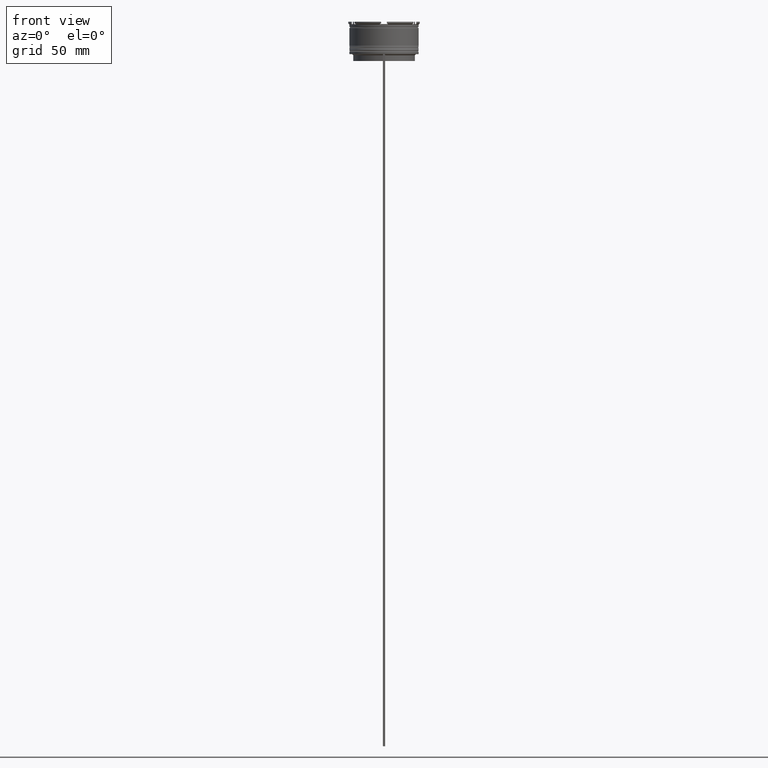
[diagram: clean part render]
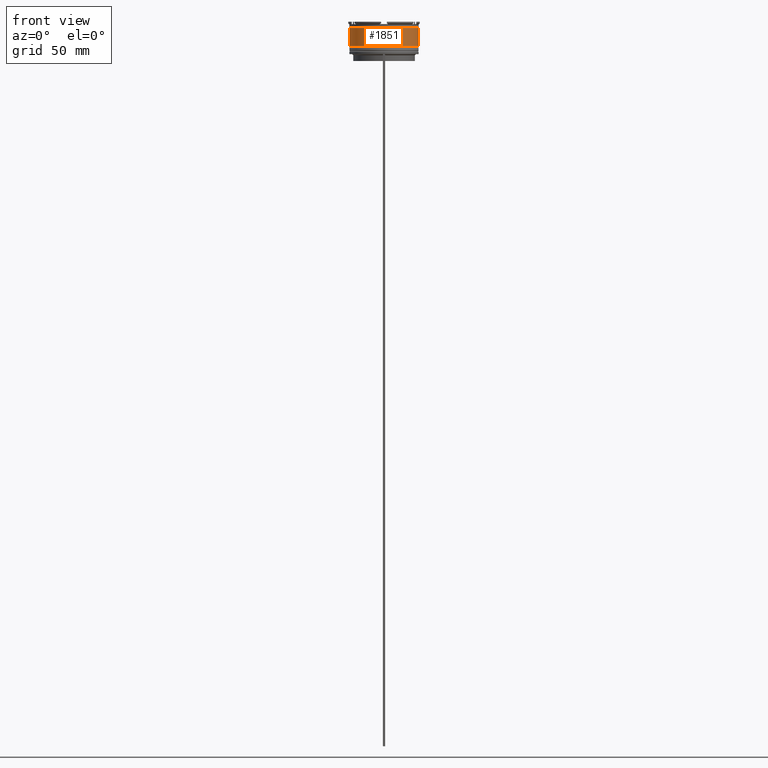
[diagram: same view with one face highlighted and labeled with its STEP entity id]
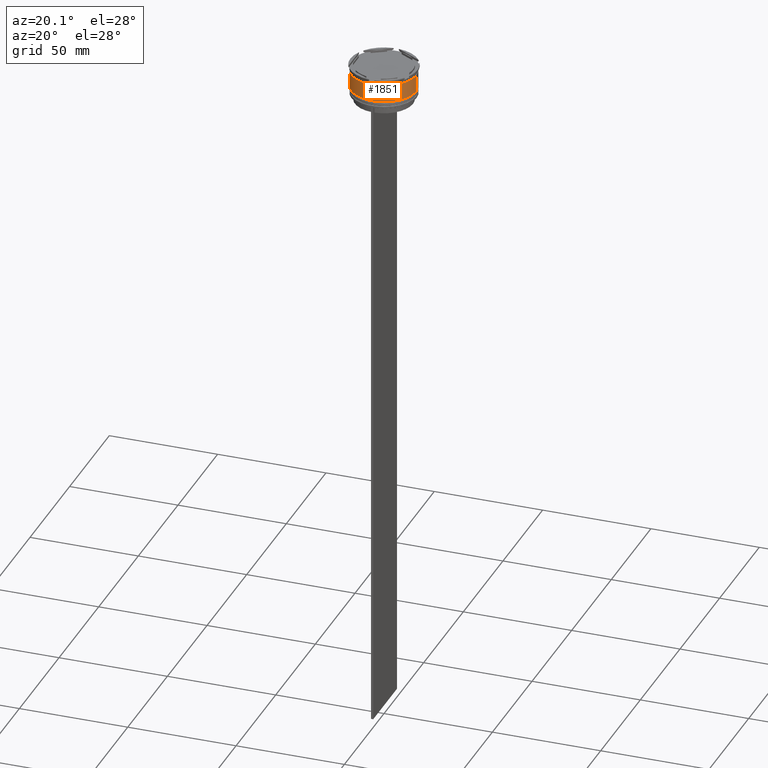
[diagram: same view with one face highlighted and labeled with its STEP entity id]
A machine part, front view. The second image highlights one B-rep face of the part: STEP entity #1851.
A second angle (auxiliary view) of the same face is appended — the face is thin or edge-on in the first view.
In plain terms, the highlighted cylindrical surface (edge-blend (fillet) strip) has radius 15 mm, axis along (-0, -0, 1).
Its self-contained STEP definition (entity closure, byte-faithful):
#45 = DIRECTION ( 'NONE',  ( -0.000000000000000000, -0.000000000000000000, 1.000000000000000000 ) ) ;
#117 = ORIENTED_EDGE ( 'NONE', *, *, #783, .F. ) ;
#287 = LINE ( 'NONE', #1179, #456 ) ;
#299 = CARTESIAN_POINT ( 'NONE',  ( -14.99999999999999822, 1.836970198721029194E-15, -2.699999999999999734 ) ) ;
#439 = EDGE_CURVE ( 'NONE', #921, #2429, #784, .T. ) ;
#456 = VECTOR ( 'NONE', #45, 1000.000000000000000 ) ;
#585 = FACE_OUTER_BOUND ( 'NONE', #1204, .T. ) ;
#624 = CARTESIAN_POINT ( 'NONE',  ( 0.000000000000000000, 0.000000000000000000, 0.000000000000000000 ) ) ;
#684 = CARTESIAN_POINT ( 'NONE',  ( 15.00000000000000000, 0.000000000000000000, 0.000000000000000000 ) ) ;
#783 = EDGE_CURVE ( 'NONE', #1962, #921, #287, .T. ) ;
#784 = CIRCLE ( 'NONE', #1906, 14.99999999999999822 ) ;
#921 = VERTEX_POINT ( 'NONE', #299 ) ;
#1138 = ORIENTED_EDGE ( 'NONE', *, *, #2604, .T. ) ;
#1179 = CARTESIAN_POINT ( 'NONE',  ( -15.00000000000000000, 1.836970198721029589E-15, 0.000000000000000000 ) ) ;
#1204 = EDGE_LOOP ( 'NONE', ( #117, #1138, #1981, #2034 ) ) ;
#1347 = VERTEX_POINT ( 'NONE', #2427 ) ;
#1458 = CYLINDRICAL_SURFACE ( 'NONE', #1782, 15.00000000000000000 ) ;
#1531 = CARTESIAN_POINT ( 'NONE',  ( -15.00000000000000355, 1.836970198721029983E-15, -10.50000000000000178 ) ) ;
#1639 = AXIS2_PLACEMENT_3D ( 'NONE', #2146, #1951, #1738 ) ;
#1738 = DIRECTION ( 'NONE',  ( 1.000000000000000000, 0.000000000000000000, 0.000000000000000000 ) ) ;
#1764 = CARTESIAN_POINT ( 'NONE',  ( 14.99999999999999822, 0.000000000000000000, -2.699999999999999734 ) ) ;
#1782 = AXIS2_PLACEMENT_3D ( 'NONE', #624, #2395, #2122 ) ;
#1851 = ADVANCED_FACE ( 'NONE', ( #585 ), #1458, .T. ) ;
#1906 = AXIS2_PLACEMENT_3D ( 'NONE', #2676, #2704, #2491 ) ;
#1951 = DIRECTION ( 'NONE',  ( -0.000000000000000000, -0.000000000000000000, 1.000000000000000000 ) ) ;
#1962 = VERTEX_POINT ( 'NONE', #1531 ) ;
#1981 = ORIENTED_EDGE ( 'NONE', *, *, #1983, .T. ) ;
#1983 = EDGE_CURVE ( 'NONE', #1347, #2429, #2673, .T. ) ;
#2034 = ORIENTED_EDGE ( 'NONE', *, *, #439, .F. ) ;
#2078 = CIRCLE ( 'NONE', #1639, 15.00000000000000178 ) ;
#2122 = DIRECTION ( 'NONE',  ( 1.000000000000000000, 0.000000000000000000, 0.000000000000000000 ) ) ;
#2146 = CARTESIAN_POINT ( 'NONE',  ( 0.000000000000000000, 0.000000000000000000, -10.50000000000000178 ) ) ;
#2219 = DIRECTION ( 'NONE',  ( -0.000000000000000000, -0.000000000000000000, 1.000000000000000000 ) ) ;
#2220 = VECTOR ( 'NONE', #2219, 1000.000000000000000 ) ;
#2395 = DIRECTION ( 'NONE',  ( -0.000000000000000000, -0.000000000000000000, 1.000000000000000000 ) ) ;
#2427 = CARTESIAN_POINT ( 'NONE',  ( 15.00000000000000178, 0.000000000000000000, -10.50000000000000178 ) ) ;
#2429 = VERTEX_POINT ( 'NONE', #1764 ) ;
#2491 = DIRECTION ( 'NONE',  ( 1.000000000000000000, 0.000000000000000000, 0.000000000000000000 ) ) ;
#2604 = EDGE_CURVE ( 'NONE', #1962, #1347, #2078, .T. ) ;
#2673 = LINE ( 'NONE', #684, #2220 ) ;
#2676 = CARTESIAN_POINT ( 'NONE',  ( 0.000000000000000000, 0.000000000000000000, -2.699999999999999734 ) ) ;
#2704 = DIRECTION ( 'NONE',  ( -0.000000000000000000, -0.000000000000000000, 1.000000000000000000 ) ) ;